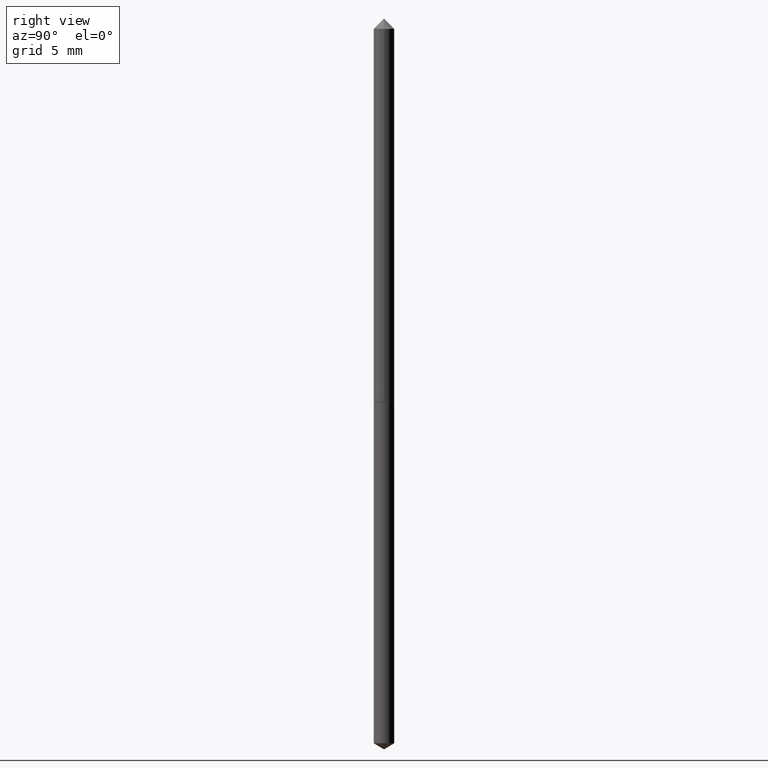
[diagram: clean part render]
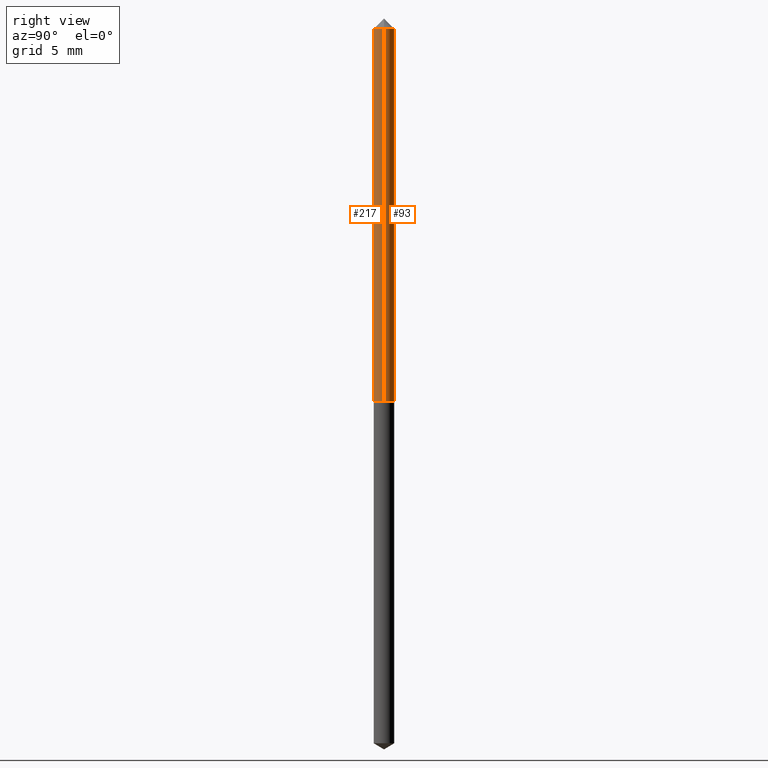
[diagram: same view with one multi-face feature highlighted, each face labeled with its STEP entity id]
A machine part, right view. The highlighted faces form ONE feature: a constant-radius fillet chain: 2 tangent blend faces with common blend radius 0.5334 mm. The faces share edges in the B-rep.
Their STEP definitions:
[1] entity #93 (Cylinder):
#24 = ORIENTED_EDGE ( 'NONE', *, *, #141, .F. ) ;
#38 = ORIENTED_EDGE ( 'NONE', *, *, #131, .F. ) ;
#44 = ORIENTED_EDGE ( 'NONE', *, *, #280, .T. ) ;
#70 = FACE_OUTER_BOUND ( 'NONE', #313, .T. ) ;
#78 = CARTESIAN_POINT ( 'NONE',  ( 0.02100000000000005335, -1.466422162314119944E-16, 1.023997122917149277E-30 ) ) ;
#84 = CIRCLE ( 'NONE', #193, 0.02100000000000009845 ) ;
#90 = AXIS2_PLACEMENT_3D ( 'NONE', #130, #218, #197 ) ;
#93 = ADVANCED_FACE ( 'NONE', ( #70 ), #184, .T. ) ;
#96 = VERTEX_POINT ( 'NONE', #112 ) ;
#99 = AXIS2_PLACEMENT_3D ( 'NONE', #300, #359, #136 ) ;
#106 = VECTOR ( 'NONE', #241, 39.37007874015748143 ) ;
#107 = VECTOR ( 'NONE', #285, 39.37007874015748143 ) ;
#112 = CARTESIAN_POINT ( 'NONE',  ( -0.02100000000000000824, -1.287094161256977096E-15, -0.03125000000000020817 ) ) ;
#130 = CARTESIAN_POINT ( 'NONE',  ( 0.000000000000000000, 0.000000000000000000, 0.000000000000000000 ) ) ;
#131 = EDGE_CURVE ( 'NONE', #212, #261, #331, .T. ) ;
#136 = DIRECTION ( 'NONE',  ( 1.000000000000000000, -6.982962677686265922E-15, 0.000000000000000000 ) ) ;
#140 = CARTESIAN_POINT ( 'NONE',  ( -0.02100000000000009845, -2.614293505184729024E-15, -0.7915000000000002034 ) ) ;
#141 = EDGE_CURVE ( 'NONE', #261, #96, #267, .T. ) ;
#146 = CARTESIAN_POINT ( 'NONE',  ( -0.02100000000000005335, 1.492139745096214181E-16, -1.032976368953532787E-30 ) ) ;
#163 = CARTESIAN_POINT ( 'NONE',  ( 0.02100000000000009845, -2.910149695925762806E-15, -0.7915000000000002034 ) ) ;
#169 = EDGE_CURVE ( 'NONE', #212, #266, #84, .T. ) ;
#184 = CYLINDRICAL_SURFACE ( 'NONE', #90, 0.02100000000000005335 ) ;
#190 = CARTESIAN_POINT ( 'NONE',  ( 1.935588560095536193E-29, -2.763507479694350590E-15, -0.7915000000000002034 ) ) ;
#193 = AXIS2_PLACEMENT_3D ( 'NONE', #190, #299, #224 ) ;
#197 = DIRECTION ( 'NONE',  ( 1.000000000000000000, -6.982962677686267499E-15, 4.876176775795936353E-29 ) ) ;
#212 = VERTEX_POINT ( 'NONE', #163 ) ;
#218 = DIRECTION ( 'NONE',  ( -2.445468806185136597E-29, 3.491481338843145583E-15, 1.000000000000000000 ) ) ;
#224 = DIRECTION ( 'NONE',  ( 1.000000000000000000, -6.982962677686277755E-15, 0.000000000000000000 ) ) ;
#225 = LINE ( 'NONE', #146, #107 ) ;
#241 = DIRECTION ( 'NONE',  ( -2.445468806185136877E-29, 3.491481338843145188E-15, 1.000000000000000000 ) ) ;
#261 = VERTEX_POINT ( 'NONE', #314 ) ;
#266 = VERTEX_POINT ( 'NONE', #140 ) ;
#267 = CIRCLE ( 'NONE', #99, 0.02100000000000000824 ) ;
#280 = EDGE_CURVE ( 'NONE', #266, #96, #225, .T. ) ;
#285 = DIRECTION ( 'NONE',  ( -2.445468806185136877E-29, 3.491481338843145188E-15, 1.000000000000000000 ) ) ;
#288 = ORIENTED_EDGE ( 'NONE', *, *, #169, .T. ) ;
#299 = DIRECTION ( 'NONE',  ( -2.445468806185136597E-29, 3.491481338843145583E-15, 1.000000000000000000 ) ) ;
#300 = CARTESIAN_POINT ( 'NONE',  ( 7.642090019328602662E-31, -1.091087918388490267E-16, -0.03125000000000020817 ) ) ;
#313 = EDGE_LOOP ( 'NONE', ( #288, #44, #24, #38 ) ) ;
#314 = CARTESIAN_POINT ( 'NONE',  ( 0.02100000000000000824, -2.557510080702606759E-16, -0.03125000000000020817 ) ) ;
#331 = LINE ( 'NONE', #78, #106 ) ;
#359 = DIRECTION ( 'NONE',  ( -2.445468806185136597E-29, 3.491481338843145583E-15, 1.000000000000000000 ) ) ;
[2] entity #217 (Cylinder):
#33 = CIRCLE ( 'NONE', #229, 0.02100000000000009845 ) ;
#47 = AXIS2_PLACEMENT_3D ( 'NONE', #258, #256, #60 ) ;
#60 = DIRECTION ( 'NONE',  ( 1.000000000000000000, -6.982962677686265922E-15, 0.000000000000000000 ) ) ;
#78 = CARTESIAN_POINT ( 'NONE',  ( 0.02100000000000005335, -1.466422162314119944E-16, 1.023997122917149277E-30 ) ) ;
#81 = DIRECTION ( 'NONE',  ( 1.000000000000000000, -6.982962677686267499E-15, 4.876176775795936353E-29 ) ) ;
#96 = VERTEX_POINT ( 'NONE', #112 ) ;
#102 = ORIENTED_EDGE ( 'NONE', *, *, #191, .T. ) ;
#106 = VECTOR ( 'NONE', #241, 39.37007874015748143 ) ;
#107 = VECTOR ( 'NONE', #285, 39.37007874015748143 ) ;
#112 = CARTESIAN_POINT ( 'NONE',  ( -0.02100000000000000824, -1.287094161256977096E-15, -0.03125000000000020817 ) ) ;
#120 = CIRCLE ( 'NONE', #47, 0.02100000000000000824 ) ;
#124 = ORIENTED_EDGE ( 'NONE', *, *, #280, .F. ) ;
#131 = EDGE_CURVE ( 'NONE', #212, #261, #331, .T. ) ;
#135 = CYLINDRICAL_SURFACE ( 'NONE', #186, 0.02100000000000005335 ) ;
#140 = CARTESIAN_POINT ( 'NONE',  ( -0.02100000000000009845, -2.614293505184729024E-15, -0.7915000000000002034 ) ) ;
#146 = CARTESIAN_POINT ( 'NONE',  ( -0.02100000000000005335, 1.492139745096214181E-16, -1.032976368953532787E-30 ) ) ;
#149 = ORIENTED_EDGE ( 'NONE', *, *, #131, .T. ) ;
#163 = CARTESIAN_POINT ( 'NONE',  ( 0.02100000000000009845, -2.910149695925762806E-15, -0.7915000000000002034 ) ) ;
#165 = DIRECTION ( 'NONE',  ( -2.445468806185136597E-29, 3.491481338843145583E-15, 1.000000000000000000 ) ) ;
#186 = AXIS2_PLACEMENT_3D ( 'NONE', #275, #165, #81 ) ;
#189 = EDGE_LOOP ( 'NONE', ( #124, #102, #149, #323 ) ) ;
#191 = EDGE_CURVE ( 'NONE', #266, #212, #33, .T. ) ;
#212 = VERTEX_POINT ( 'NONE', #163 ) ;
#217 = ADVANCED_FACE ( 'NONE', ( #221 ), #135, .T. ) ;
#221 = FACE_OUTER_BOUND ( 'NONE', #189, .T. ) ;
#225 = LINE ( 'NONE', #146, #107 ) ;
#229 = AXIS2_PLACEMENT_3D ( 'NONE', #248, #303, #272 ) ;
#241 = DIRECTION ( 'NONE',  ( -2.445468806185136877E-29, 3.491481338843145188E-15, 1.000000000000000000 ) ) ;
#248 = CARTESIAN_POINT ( 'NONE',  ( 1.935588560095536193E-29, -2.763507479694350590E-15, -0.7915000000000002034 ) ) ;
#254 = EDGE_CURVE ( 'NONE', #96, #261, #120, .T. ) ;
#256 = DIRECTION ( 'NONE',  ( -2.445468806185136597E-29, 3.491481338843145583E-15, 1.000000000000000000 ) ) ;
#258 = CARTESIAN_POINT ( 'NONE',  ( 7.642090019328602662E-31, -1.091087918388490267E-16, -0.03125000000000020817 ) ) ;
#261 = VERTEX_POINT ( 'NONE', #314 ) ;
#266 = VERTEX_POINT ( 'NONE', #140 ) ;
#272 = DIRECTION ( 'NONE',  ( 1.000000000000000000, -6.982962677686277755E-15, 0.000000000000000000 ) ) ;
#275 = CARTESIAN_POINT ( 'NONE',  ( 0.000000000000000000, 0.000000000000000000, 0.000000000000000000 ) ) ;
#280 = EDGE_CURVE ( 'NONE', #266, #96, #225, .T. ) ;
#285 = DIRECTION ( 'NONE',  ( -2.445468806185136877E-29, 3.491481338843145188E-15, 1.000000000000000000 ) ) ;
#303 = DIRECTION ( 'NONE',  ( -2.445468806185136597E-29, 3.491481338843145583E-15, 1.000000000000000000 ) ) ;
#314 = CARTESIAN_POINT ( 'NONE',  ( 0.02100000000000000824, -2.557510080702606759E-16, -0.03125000000000020817 ) ) ;
#323 = ORIENTED_EDGE ( 'NONE', *, *, #254, .F. ) ;
#331 = LINE ( 'NONE', #78, #106 ) ;